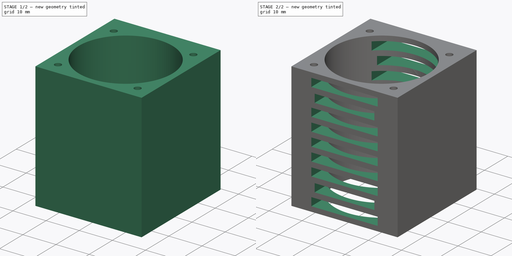
[diagram: build sequence overview — one tinted view per stage of 2, left to right]
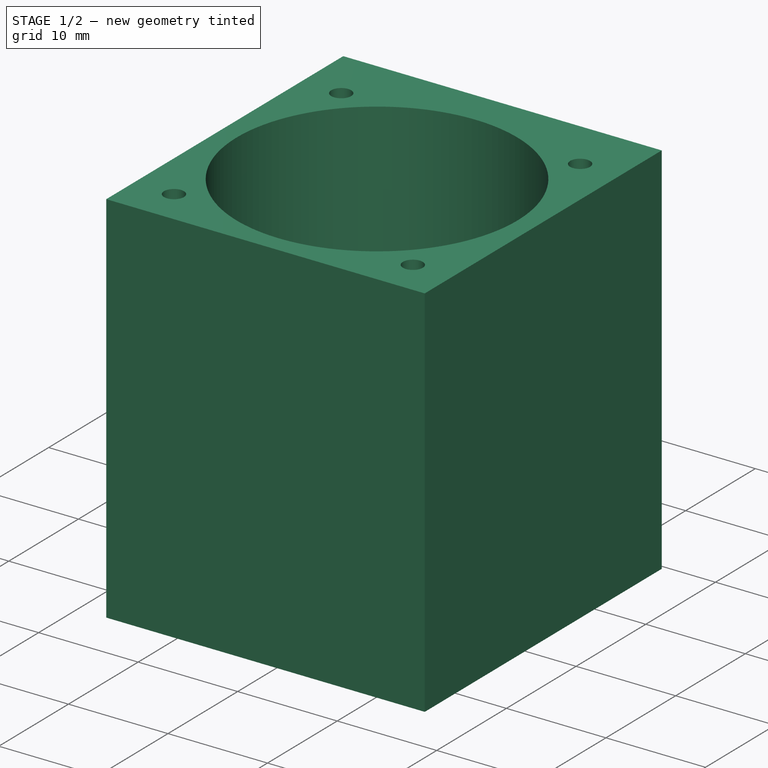
[diagram: stage 1 of 2 — iso view after this stage's code; geometry added in this stage tinted green]
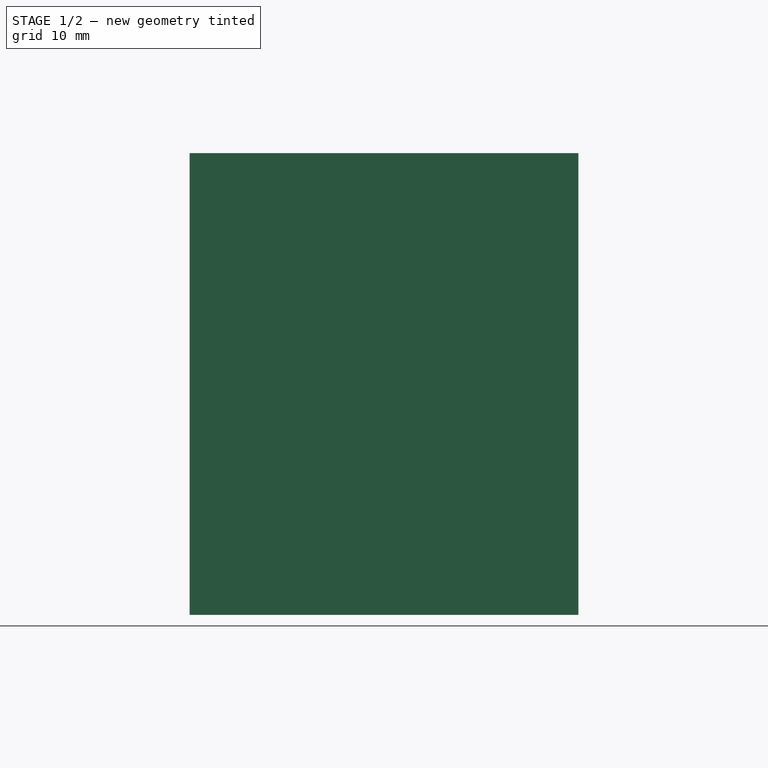
[diagram: stage 1 of 2 — front view after this stage's code; geometry added in this stage tinted green]
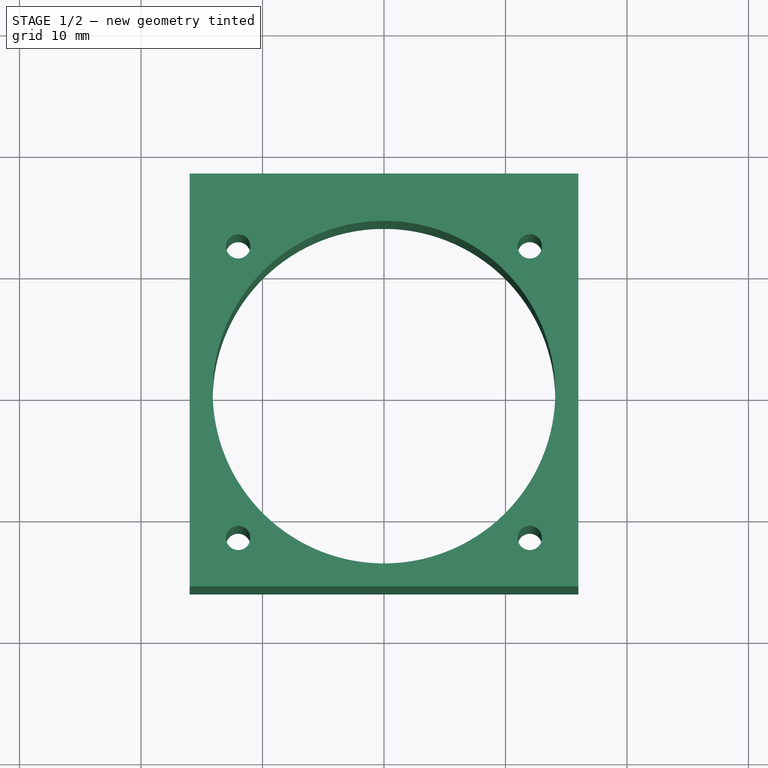
[diagram: stage 1 of 2 — top view after this stage's code; geometry added in this stage tinted green]
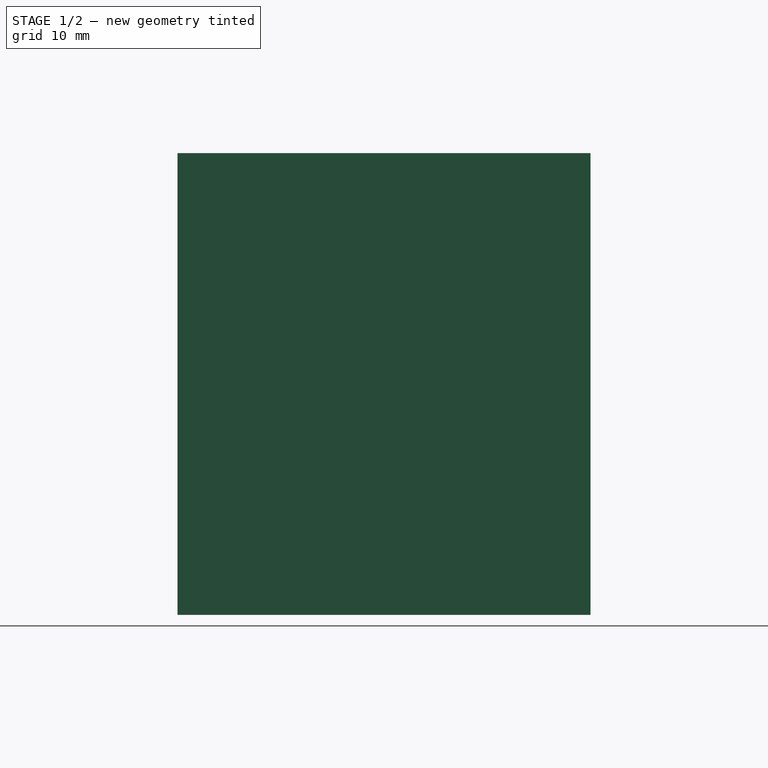
[diagram: stage 1 of 2 — right view after this stage's code; geometry added in this stage tinted green]
FCSTD DOCUMENT  (FreeCAD 0.20R29410 (Git))
Label: motor_cover
License: All rights reserved
LicenseURL: http://en.wikipedia.org/wiki/All_rights_reserved
objects: Sketcher::SketchObject×3, PartDesign::Pocket×2, PartDesign::Pad×1, PartDesign::Body×1
note: 10 computed .brp shape members not serialized (recipe doc carries the construction recipe); baked Part::Feature solids carry a one-line shape summary decoded from their .brp

FEATURE [Sketcher::SketchObject] Sketch
  FullyConstrained = true
  MapMode = 5
  Support = -> [XY_Plane]
  sketch-geometry (19):
    g0: Circle CenterX=0 CenterY=0 CenterZ=0 NormalX=0 NormalY=0 NormalZ=1 AngleXU=0 Radius=14.1
    g1: LineSegment StartX=16 StartY=-16 StartZ=0 EndX=16 EndY=16 EndZ=0
    g2: LineSegment StartX=16 StartY=16 StartZ=0 EndX=-16 EndY=16 EndZ=0
    g3: LineSegment StartX=-16 StartY=16 StartZ=0 EndX=-16 EndY=-16 EndZ=0
    g4: LineSegment StartX=-16 StartY=-16 StartZ=0 EndX=16 EndY=-16 EndZ=0
    g5: GeomPoint X=0 Y=0 Z=0
    g6: Circle CenterX=-12 CenterY=12 CenterZ=0 NormalX=0 NormalY=0 NormalZ=1 AngleXU=0 Radius=1
    g7: Circle CenterX=12 CenterY=12 CenterZ=0 NormalX=0 NormalY=0 NormalZ=1 AngleXU=0 Radius=1
    g8: Circle CenterX=12 CenterY=-12 CenterZ=0 NormalX=0 NormalY=0 NormalZ=1 AngleXU=0 Radius=1
    g9: Circle CenterX=-12 CenterY=-12 CenterZ=0 NormalX=0 NormalY=0 NormalZ=1 AngleXU=0 Radius=1
    g10: LineSegment StartX=0 StartY=16 StartZ=0 EndX=0 EndY=-16 EndZ=0
    g11: LineSegment StartX=-16 StartY=16 StartZ=0 EndX=-16 EndY=18 EndZ=0
    g12: LineSegment StartX=-16 StartY=18 StartZ=0 EndX=16 EndY=18 EndZ=0
    g13: LineSegment StartX=16 StartY=18 StartZ=0 EndX=16 EndY=16 EndZ=0
    g14: LineSegment StartX=-12 StartY=12 StartZ=0 EndX=-12 EndY=-12 EndZ=0
    g15: LineSegment StartX=-12 StartY=-12 StartZ=0 EndX=12 EndY=-12 EndZ=0
    g16: LineSegment StartX=12 StartY=-12 StartZ=0 EndX=12 EndY=12 EndZ=0
    g17: LineSegment StartX=12 StartY=12 StartZ=0 EndX=-12 EndY=12 EndZ=0
    g18: GeomPoint X=0 Y=0 Z=0
  constraints (46):
    c: Coincident(g0,g-1)
    c: Diameter(g0) = 28.2
    c: Coincident(g3,g4)
    c: Coincident(g4,g1)
    c: Horizontal(g2)
    c: Horizontal(g4)
    c: Vertical(g1)
    c: Vertical(g3)
    c: Symmetric(g2,g1,g5)
    c: Coincident(g5,g0)
    c: Equal(g6,g7)
    c: Equal(g7,g8)
    c: Equal(g8,g9)
    c: Diameter(g6) = 2
    c: DistanceY(g3,g2) = 32
    c: PointOnObject(g10,g2)
    c: PointOnObject(g10,g4)
    c: Vertical(g10)
    c: PointOnObject(g10,g-2)
    c: Equal(g4,g10)
    c: Coincident(g3,g2)
    c: Coincident(g1,g2)
    c: Coincident(g11,g3)
    c: Vertical(g11)
    c: Coincident(g12,g11)
    c: Horizontal(g12)
    c: Coincident(g13,g12)
    c: Coincident(g13,g1)
    c: Vertical(g13)
    c: DistanceY(g11,g11) = 2
    c: Coincident(g14,g15)
    c: Coincident(g15,g16)
    c: Coincident(g16,g17)
    c: Coincident(g17,g14)
    c: Horizontal(g15)
    c: Horizontal(g17)
    c: Vertical(g14)
    c: Vertical(g16)
    c: Symmetric(g15,g14,g18)
    c: Coincident(g18,g0)
    c: Coincident(g15,g8)
    c: Coincident(g16,g7)
    c: Coincident(g6,g14)
    c: Coincident(g9,g14)
    c: Equal(g17,g14)
    c: DistanceY(g14,g14) = 24
FEATURE [PartDesign::Pad] Pad
  Direction = (0,0,1)
  Length = 38
  Length2 = 10
  Profile = -> Sketch
  ReferenceAxis = -> Sketch [N_Axis]
  Type = 0
FEATURE [Sketcher::SketchObject] Sketch001
  ExternalGeometry = -> [Pad]
  FullyConstrained = true
  MapMode = 5
  Placement = pos=(0,18,0) rot=(0,0.707107,0.707107;3.14159rad)
  Support = -> [Pad]
  sketch-geometry (15):
    g0: LineSegment StartX=15 StartY=4 StartZ=0 EndX=15 EndY=34 EndZ=0
    g1: LineSegment StartX=15 StartY=34 StartZ=0 EndX=-15 EndY=34 EndZ=0
    g2: LineSegment StartX=-15 StartY=34 StartZ=0 EndX=-15 EndY=4 EndZ=0
    g3: LineSegment StartX=-15 StartY=4 StartZ=0 EndX=15 EndY=4 EndZ=0
    g4: GeomPoint X=0 Y=19 Z=0
    g5: LineSegment StartX=12 StartY=7 StartZ=0 EndX=12 EndY=31 EndZ=0
    g6: LineSegment StartX=12 StartY=31 StartZ=0 EndX=-12 EndY=31 EndZ=0
    g7: LineSegment StartX=-12 StartY=31 StartZ=0 EndX=-12 EndY=7 EndZ=0
    g8: LineSegment StartX=-12 StartY=7 StartZ=0 EndX=12 EndY=7 EndZ=0
    g9: GeomPoint X=0 Y=19 Z=0
    g10: LineSegment StartX=-16 StartY=38 StartZ=0 EndX=16 EndY=0 EndZ=0
    g11: Circle CenterX=-12 CenterY=31 CenterZ=0 NormalX=0 NormalY=0 NormalZ=1 AngleXU=0 Radius=1.5
    g12: Circle CenterX=12 CenterY=31 CenterZ=0 NormalX=0 NormalY=0 NormalZ=1 AngleXU=0 Radius=1.5
    g13: Circle CenterX=12 CenterY=7 CenterZ=0 NormalX=0 NormalY=0 NormalZ=1 AngleXU=0 Radius=1.5
    g14: Circle CenterX=-12 CenterY=7 CenterZ=0 NormalX=0 NormalY=0 NormalZ=1 AngleXU=0 Radius=1.5
  constraints (35):
    c: Coincident(g0,g1)
    c: Coincident(g1,g2)
    c: Coincident(g2,g3)
    c: Coincident(g3,g0)
    c: Horizontal(g1)
    c: Horizontal(g3)
    c: Vertical(g0)
    c: Vertical(g2)
    c: Symmetric(g1,g0,g4)
    c: PointOnObject(g4,g-2)
    c: Equal(g1,g2)
    c: Coincident(g5,g6)
    c: Coincident(g6,g7)
    c: Coincident(g7,g8)
    c: Coincident(g8,g5)
    c: Horizontal(g6)
    c: Horizontal(g8)
    c: Vertical(g5)
    c: Vertical(g7)
    c: Symmetric(g6,g5,g9)
    c: Coincident(g9,g4)
    c: Equal(g6,g7)
    c: DistanceY(g2,g2) = 30
    c: DistanceY(g7,g7) = 24
    c: Coincident(g10,g-4)
    c: Coincident(g10,g-6)
    c: PointOnObject(g4,g10)
    c: Coincident(g11,g6)
    c: Coincident(g12,g5)
    c: Coincident(g13,g5)
    c: Coincident(g14,g7)
    c: Equal(g13,g12)
    c: Equal(g12,g11)
    c: Equal(g11,g14)
    c: Diameter(g11) = 3
FEATURE [PartDesign::Pocket] Pocket
  BaseFeature = -> Pad
  Direction = (0,-1,2e-16)
  Length = 3
  Length2 = 5
  Profile = -> Sketch001
  ReferenceAxis = -> Sketch001 [N_Axis]
  Type = 0
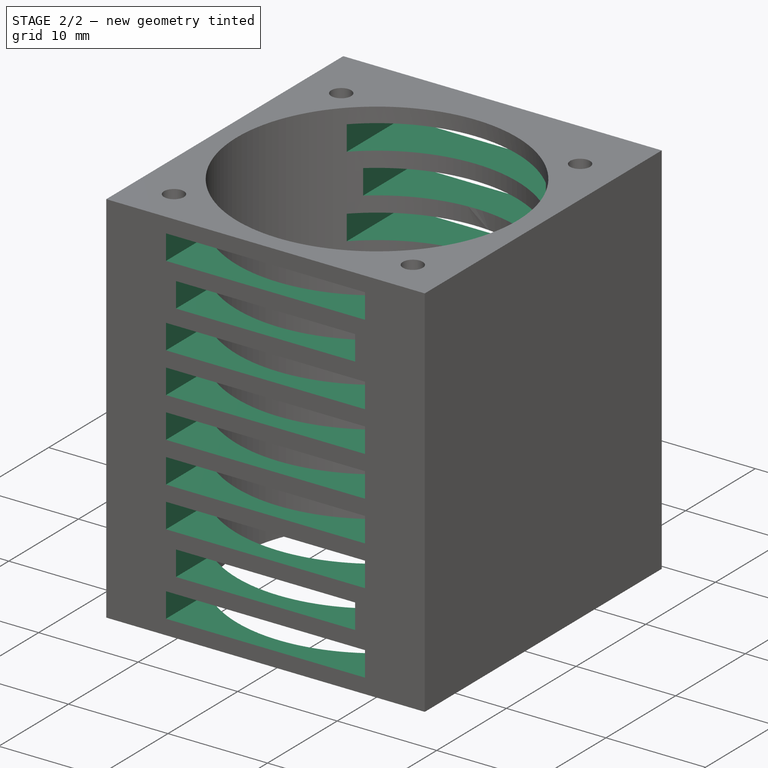
[diagram: stage 2 of 2 — iso view after this stage's code; geometry added in this stage tinted green]
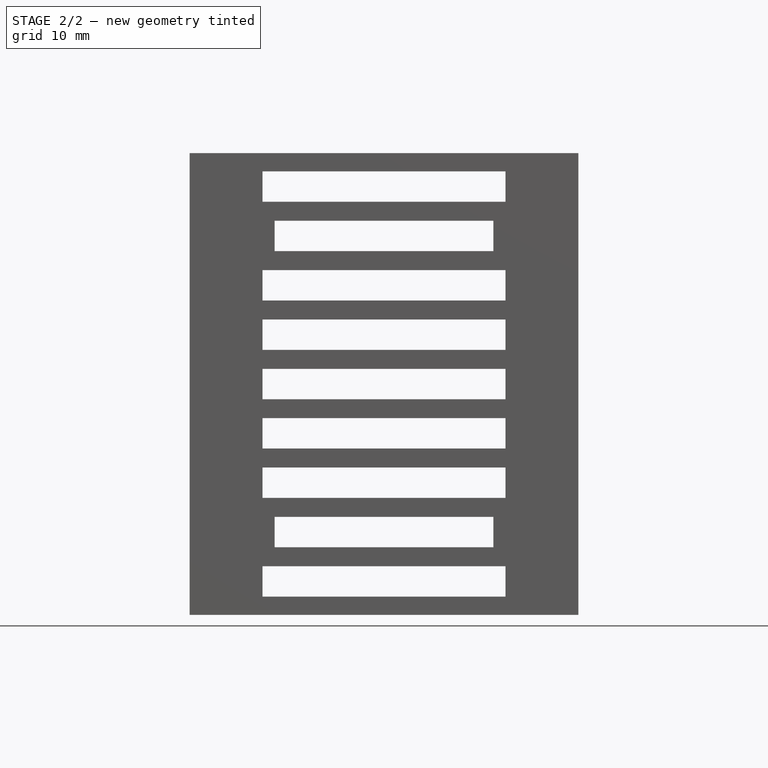
[diagram: stage 2 of 2 — front view after this stage's code; geometry added in this stage tinted green]
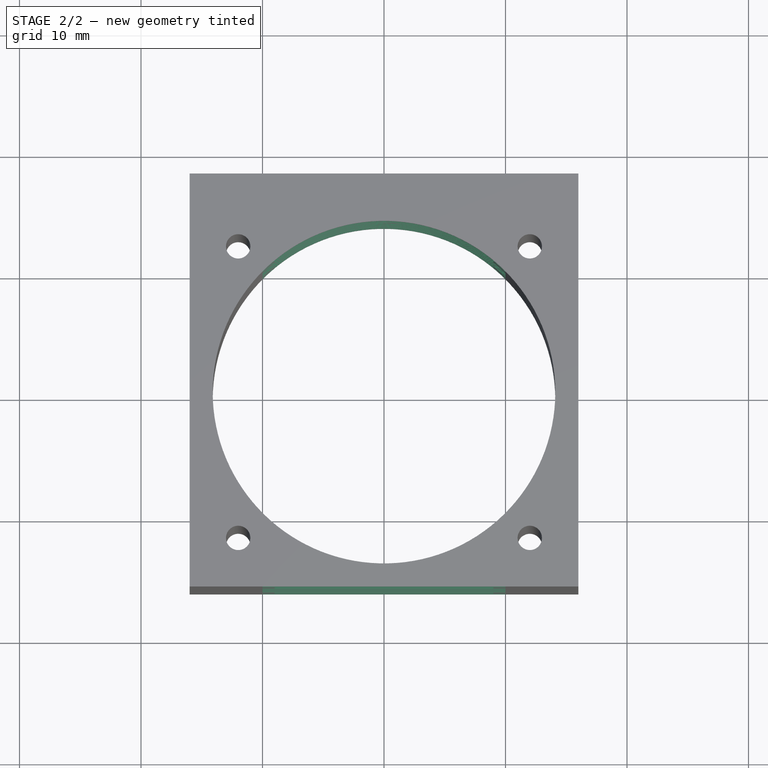
[diagram: stage 2 of 2 — top view after this stage's code; geometry added in this stage tinted green]
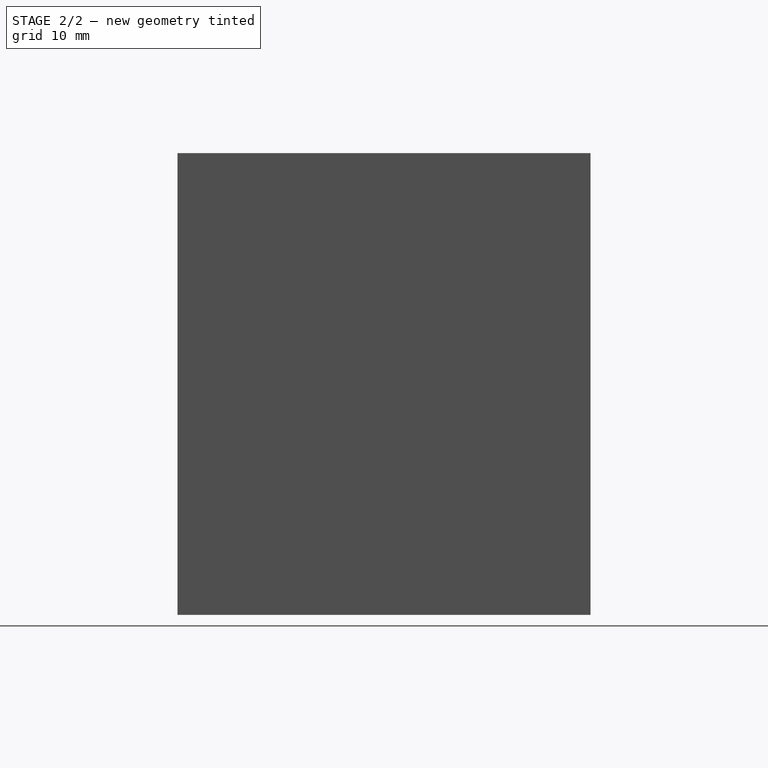
[diagram: stage 2 of 2 — right view after this stage's code; geometry added in this stage tinted green]
FEATURE [Sketcher::SketchObject] Sketch002
  ExternalGeometry = -> [Pocket]
  FullyConstrained = true
  MapMode = 5
  Placement = pos=(0,18,0) rot=(0,0.707107,0.707107;3.14159rad)
  Support = -> [Pocket]
  sketch-geometry (50):
    g0: LineSegment StartX=-16 StartY=38 StartZ=0 EndX=16 EndY=0 EndZ=0
    g1: LineSegment StartX=15 StartY=4 StartZ=0 EndX=15 EndY=34 EndZ=0
    g2: LineSegment StartX=15 StartY=34 StartZ=0 EndX=-15 EndY=34 EndZ=0
    g3: LineSegment StartX=-15 StartY=34 StartZ=0 EndX=-15 EndY=4 EndZ=0
    g4: LineSegment StartX=-15 StartY=4 StartZ=0 EndX=15 EndY=4 EndZ=0
    g5: GeomPoint X=0 Y=19 Z=0
    g6: LineSegment StartX=-10 StartY=28.375 StartZ=0 EndX=10 EndY=28.375 EndZ=0
    g7: LineSegment StartX=10 StartY=28.375 StartZ=0 EndX=10 EndY=25.875 EndZ=0
    g8: LineSegment StartX=10 StartY=25.875 StartZ=0 EndX=-10 EndY=25.875 EndZ=0
    g9: LineSegment StartX=-10 StartY=25.875 StartZ=0 EndX=-10 EndY=28.375 EndZ=0
    g10: LineSegment StartX=-10 StartY=24.3125 StartZ=0 EndX=10 EndY=24.3125 EndZ=0
    g11: LineSegment StartX=10 StartY=24.3125 StartZ=0 EndX=10 EndY=21.8125 EndZ=0
    g12: LineSegment StartX=10 StartY=21.8125 StartZ=0 EndX=-10 EndY=21.8125 EndZ=0
    g13: LineSegment StartX=-10 StartY=21.8125 StartZ=0 EndX=-10 EndY=24.3125 EndZ=0
    g14: LineSegment StartX=-10 StartY=20.25 StartZ=0 EndX=10 EndY=20.25 EndZ=0
    g15: LineSegment StartX=10 StartY=20.25 StartZ=0 EndX=10 EndY=17.75 EndZ=0
    g16: LineSegment StartX=10 StartY=17.75 StartZ=0 EndX=-10 EndY=17.75 EndZ=0
    g17: LineSegment StartX=-10 StartY=17.75 StartZ=0 EndX=-10 EndY=20.25 EndZ=0
    g18: LineSegment StartX=-10 StartY=16.1875 StartZ=0 EndX=10 EndY=16.1875 EndZ=0
    g19: LineSegment StartX=10 StartY=16.1875 StartZ=0 EndX=10 EndY=13.6875 EndZ=0
    g20: LineSegment StartX=10 StartY=13.6875 StartZ=0 EndX=-10 EndY=13.6875 EndZ=0
    g21: LineSegment StartX=-10 StartY=13.6875 StartZ=0 EndX=-10 EndY=16.1875 EndZ=0
    g22: LineSegment StartX=-10 StartY=12.125 StartZ=0 EndX=10 EndY=12.125 EndZ=0
    g23: LineSegment StartX=10 StartY=12.125 StartZ=0 EndX=10 EndY=9.625 EndZ=0
    g24: LineSegment StartX=10 StartY=9.625 StartZ=0 EndX=-10 EndY=9.625 EndZ=0
    g25: LineSegment StartX=-10 StartY=9.625 StartZ=0 EndX=-10 EndY=12.125 EndZ=0
    g26: LineSegment StartX=-9 StartY=8.0625 StartZ=0 EndX=9 EndY=8.0625 EndZ=0
    g27: LineSegment StartX=9 StartY=8.0625 StartZ=0 EndX=9 EndY=5.5625 EndZ=0
    g28: LineSegment StartX=9 StartY=5.5625 StartZ=0 EndX=-9 EndY=5.5625 EndZ=0
    g29: LineSegment StartX=-9 StartY=5.5625 StartZ=0 EndX=-9 EndY=8.0625 EndZ=0
    g30: LineSegment StartX=-9 StartY=32.4375 StartZ=0 EndX=9 EndY=32.4375 EndZ=0
    g31: LineSegment StartX=9 StartY=32.4375 StartZ=0 EndX=9 EndY=29.9375 EndZ=0
    g32: LineSegment StartX=9 StartY=29.9375 StartZ=0 EndX=-9 EndY=29.9375 EndZ=0
    g33: LineSegment StartX=-9 StartY=29.9375 StartZ=0 EndX=-9 EndY=32.4375 EndZ=0
    g34: LineSegment StartX=0 StartY=4 StartZ=0 EndX=0 EndY=5.5625 EndZ=0
    g35: LineSegment StartX=0 StartY=8.0625 StartZ=0 EndX=0 EndY=9.625 EndZ=0
    g36: LineSegment StartX=0 StartY=12.125 StartZ=0 EndX=0 EndY=13.6875 EndZ=0
    g37: LineSegment StartX=0 StartY=16.1875 StartZ=0 EndX=0 EndY=17.75 EndZ=0
    g38: LineSegment StartX=0 StartY=20.25 StartZ=0 EndX=0 EndY=21.8125 EndZ=0
    g39: LineSegment StartX=0 StartY=24.3125 StartZ=0 EndX=0 EndY=25.875 EndZ=0
    g40: LineSegment StartX=0 StartY=28.375 StartZ=0 EndX=0 EndY=29.9375 EndZ=0
    g41: LineSegment StartX=0 StartY=32.4375 StartZ=0 EndX=0 EndY=34 EndZ=0
    g42: LineSegment StartX=-10 StartY=4 StartZ=0 EndX=10 EndY=4 EndZ=0
    g43: LineSegment StartX=10 StartY=4 StartZ=0 EndX=10 EndY=1.5 EndZ=0
    g44: LineSegment StartX=10 StartY=1.5 StartZ=0 EndX=-10 EndY=1.5 EndZ=0
    g45: LineSegment StartX=-10 StartY=1.5 StartZ=0 EndX=-10 EndY=4 EndZ=0
    g46: LineSegment StartX=-10 StartY=34 StartZ=0 EndX=10 EndY=34 EndZ=0
    g47: LineSegment StartX=10 StartY=34 StartZ=0 EndX=10 EndY=36.5 EndZ=0
    g48: LineSegment StartX=10 StartY=36.5 StartZ=0 EndX=-10 EndY=36.5 EndZ=0
    g49: LineSegment StartX=-10 StartY=36.5 StartZ=0 EndX=-10 EndY=34 EndZ=0
  constraints (147):
    c: Coincident(g0,g-4)
    c: Coincident(g0,g-6)
    c: Coincident(g1,g2)
    c: Coincident(g2,g3)
    c: Coincident(g3,g4)
    c: Coincident(g4,g1)
    c: Horizontal(g2)
    c: Horizontal(g4)
    c: Vertical(g1)
    c: Vertical(g3)
    c: Symmetric(g2,g1,g5)
    c: PointOnObject(g5,g-2)
    c: PointOnObject(g5,g0)
    c: DistanceX(g2,g2) = 30
    c: Equal(g2,g3)
    c: Coincident(g6,g7)
    c: Coincident(g7,g8)
    c: Coincident(g8,g9)
    c: Coincident(g9,g6)
    c: Horizontal(g8)
    c: Vertical(g7)
    c: Vertical(g9)
    c: Coincident(g10,g11)
    c: Coincident(g11,g12)
    c: Coincident(g12,g13)
    c: Coincident(g13,g10)
    c: Horizontal(g12)
    c: Vertical(g11)
    c: Vertical(g13)
    c: Coincident(g14,g15)
    c: Coincident(g15,g16)
    c: Coincident(g16,g17)
    c: Coincident(g17,g14)
    c: Horizontal(g16)
    c: Vertical(g15)
    c: Vertical(g17)
    c: Coincident(g18,g19)
    c: Coincident(g19,g20)
    c: Coincident(g20,g21)
    c: Coincident(g21,g18)
    c: Horizontal(g20)
    c: Vertical(g19)
    c: Vertical(g21)
    c: Coincident(g22,g23)
    c: Coincident(g23,g24)
    c: Coincident(g24,g25)
    c: Coincident(g25,g22)
    c: Horizontal(g24)
    c: Vertical(g23)
    c: Vertical(g25)
    c: Coincident(g26,g27)
    c: Coincident(g27,g28)
    c: Coincident(g28,g29)
    c: Coincident(g29,g26)
    c: Horizontal(g28)
    c: Vertical(g27)
    c: Vertical(g29)
    c: Coincident(g30,g31)
    c: Coincident(g31,g32)
    c: Coincident(g32,g33)
    c: Coincident(g33,g30)
    c: Horizontal(g32)
    c: Vertical(g31)
    c: Vertical(g33)
    c: Symmetric(g30,g30,g-2)
    c: Symmetric(g6,g6,g-2)
    c: Symmetric(g10,g10,g-2)
    c: Symmetric(g14,g14,g-2)
    c: Symmetric(g18,g18,g-2)
    c: Symmetric(g22,g22,g-2)
    c: Symmetric(g26,g26,g-2)
    c: DistanceY(g33,g33) = 2.5
    c: Equal(g33,g9)
    c: Equal(g9,g13)
    c: Equal(g13,g17)
    c: Equal(g17,g21)
    c: Equal(g21,g25)
    c: Equal(g25,g29)
    c: DistanceX(g30,g30) = 18
    c: DistanceX(g6,g6) = 20
    c: Equal(g6,g10)
    c: Equal(g10,g14)
    c: Equal(g14,g18)
    c: Equal(g18,g22)
    c: Equal(g30,g26)
    c: DistanceY(g1,g27) = 1.5625
    c: PointOnObject(g34,g4)
    c: PointOnObject(g34,g28)
    c: Vertical(g34)
    c: PointOnObject(g35,g26)
    c: PointOnObject(g35,g24)
    c: Vertical(g35)
    c: PointOnObject(g36,g22)
    c: PointOnObject(g36,g20)
    c: PointOnObject(g37,g18)
    c: PointOnObject(g37,g16)
    c: PointOnObject(g38,g14)
    c: PointOnObject(g38,g12)
    c: PointOnObject(g39,g10)
    c: PointOnObject(g39,g8)
    c: PointOnObject(g40,g6)
    c: PointOnObject(g40,g32)
    c: Vertical(g40)
    c: PointOnObject(g41,g30)
    c: PointOnObject(g41,g2)
    c: PointOnObject(g34,g-2)
    c: Vertical(g41)
    c: Vertical(g39)
    c: Vertical(g38)
    c: Vertical(g37)
    c: Vertical(g36)
    c: PointOnObject(g41,g-2)
    c: PointOnObject(g40,g-2)
    c: PointOnObject(g39,g-2)
    c: PointOnObject(g38,g-2)
    c: PointOnObject(g37,g-2)
    c: PointOnObject(g36,g-2)
    c: PointOnObject(g35,g-2)
    c: Equal(g34,g35)
    c: Equal(g35,g36)
    c: Equal(g36,g37)
    c: Equal(g37,g38)
    c: Equal(g38,g39)
    c: Equal(g39,g40)
    c: Equal(g40,g41)
    c: Coincident(g42,g43)
    c: Coincident(g43,g44)
    c: Coincident(g44,g45)
    c: Coincident(g45,g42)
    c: Horizontal(g44)
    c: Vertical(g43)
    c: Vertical(g45)
    c: PointOnObject(g42,g4)
    c: Equal(g29,g45)
    c: Symmetric(g42,g42,g-2)
    c: Equal(g42,g22)
    c: Coincident(g46,g47)
    c: Coincident(g47,g48)
    c: Coincident(g48,g49)
    c: Coincident(g49,g46)
    c: Horizontal(g48)
    c: Vertical(g47)
    c: Vertical(g49)
    c: PointOnObject(g41,g46)
    c: Symmetric(g46,g46,g-2)
    c: Equal(g48,g6)
    c: Equal(g47,g7)
FEATURE [PartDesign::Pocket] Pocket001
  BaseFeature = -> Pocket
  Direction = (0,-1,2e-16)
  Length = 5
  Length2 = 5
  Profile = -> Sketch002
  ReferenceAxis = -> Sketch002 [N_Axis]
  Type = 1
FEATURE [PartDesign::Body] Body
  Group = -> [Sketch,Pad,Sketch001,Pocket,Sketch002,Pocket001]
  Origin = -> Origin
  Tip = -> Pocket001
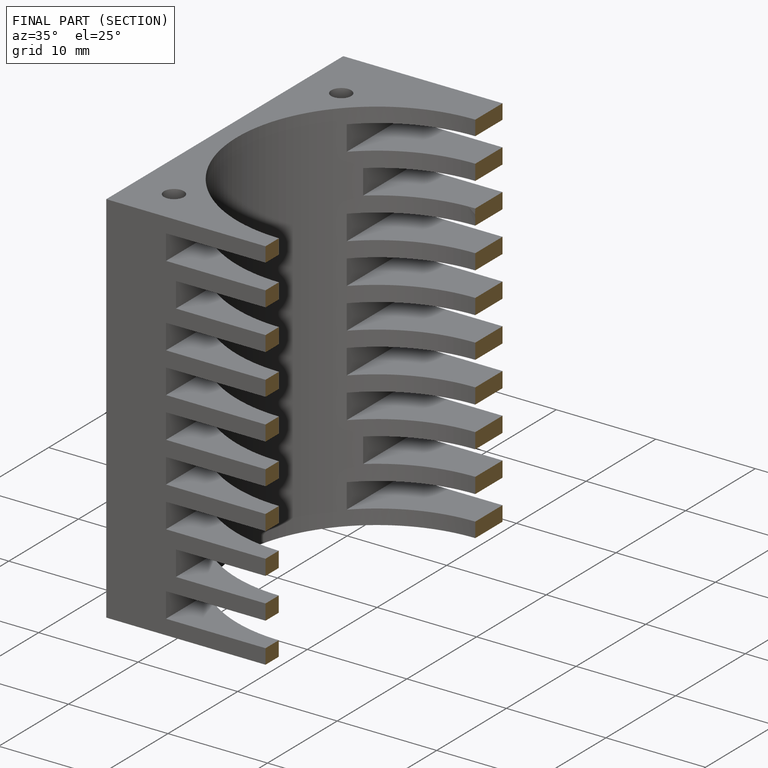
[diagram: finished part — half-section view (interior)]
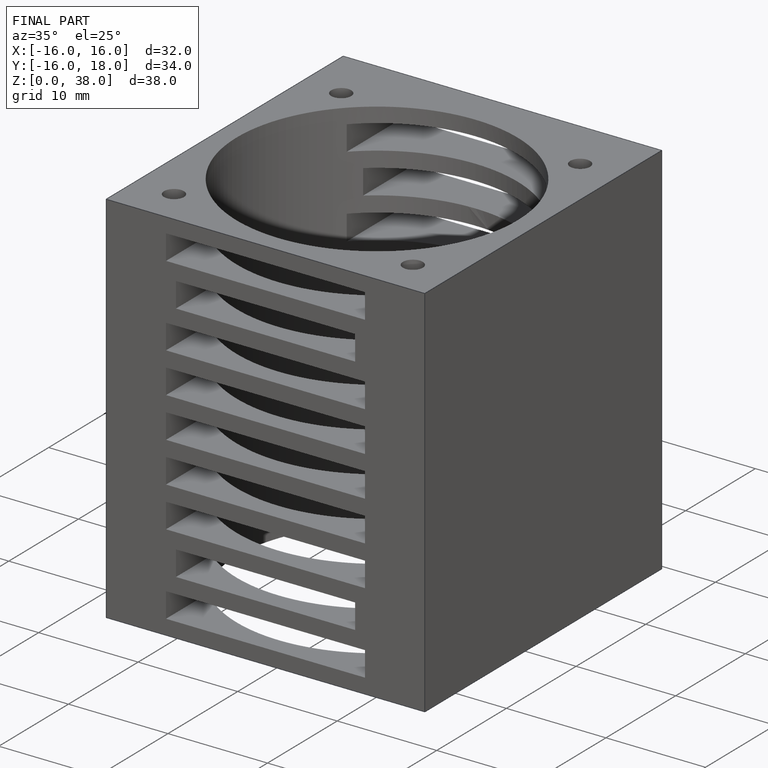
[diagram: finished part — iso view with bounding-box wireframe]
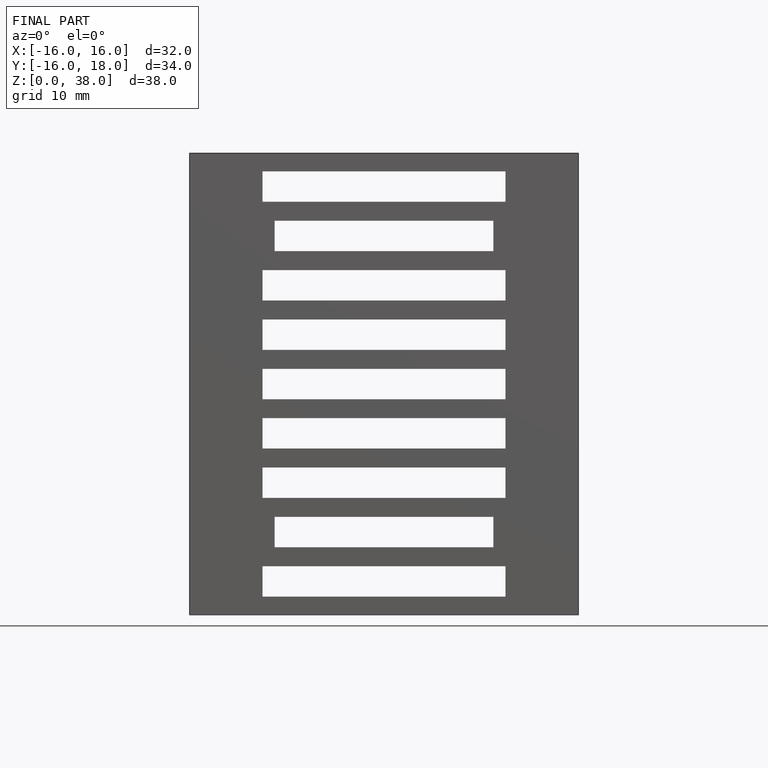
[diagram: finished part — front view with bounding-box wireframe]
